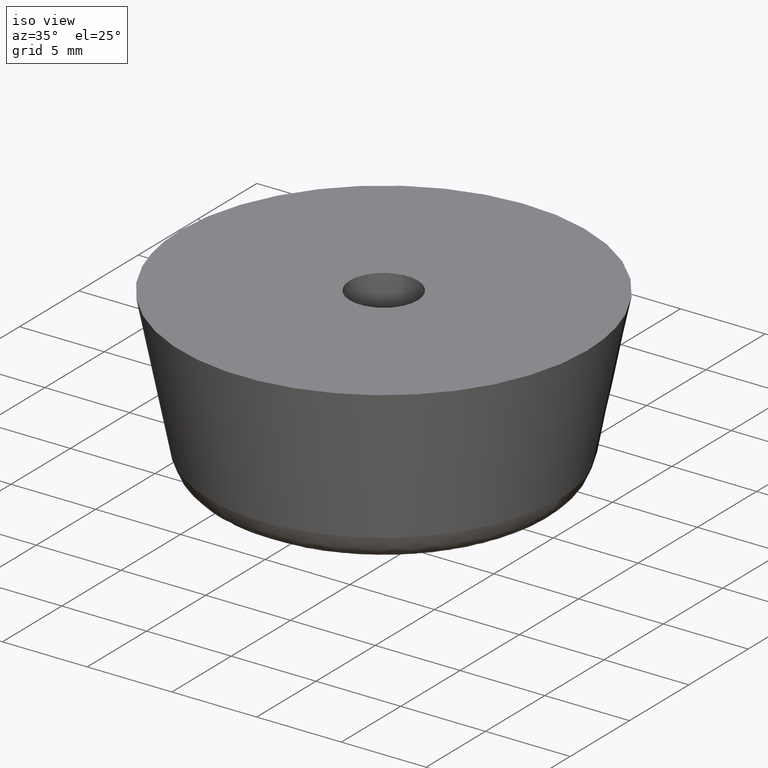
[diagram: clean part render]
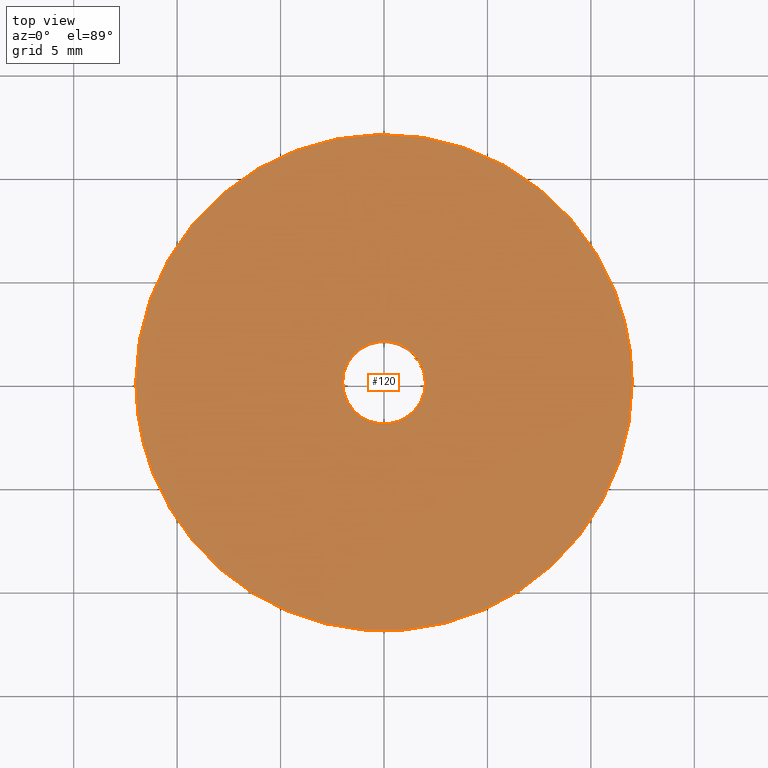
[diagram: tour spotlight — one face highlighted and labeled with its STEP entity id]
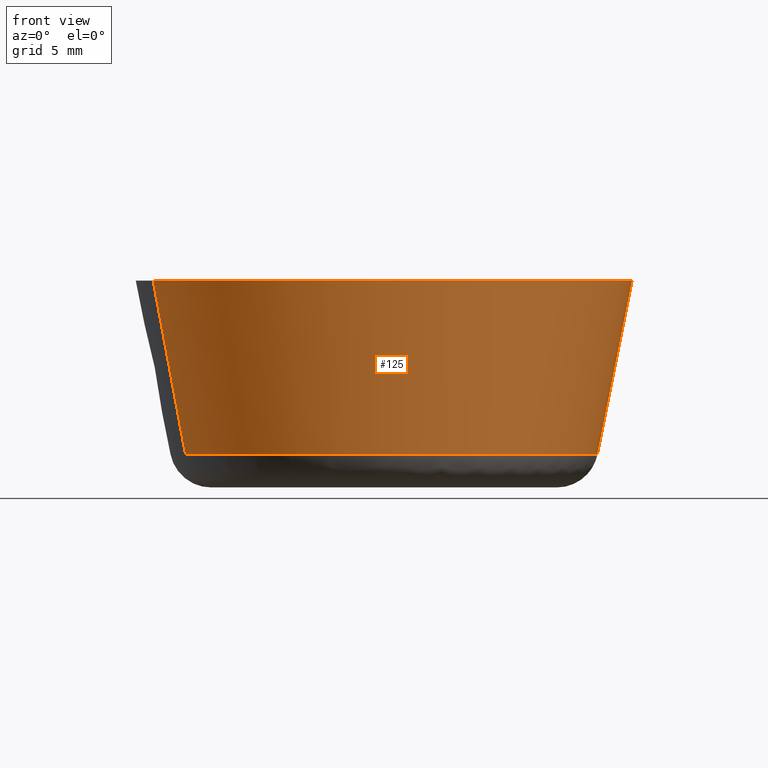
[diagram: tour spotlight — one face highlighted and labeled with its STEP entity id]
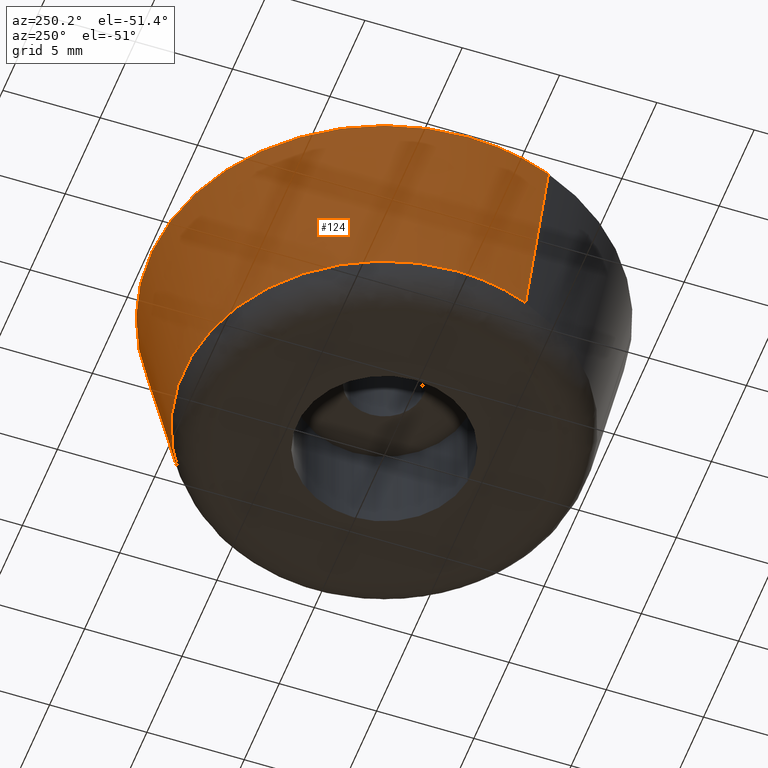
[diagram: tour spotlight — one face highlighted and labeled with its STEP entity id]
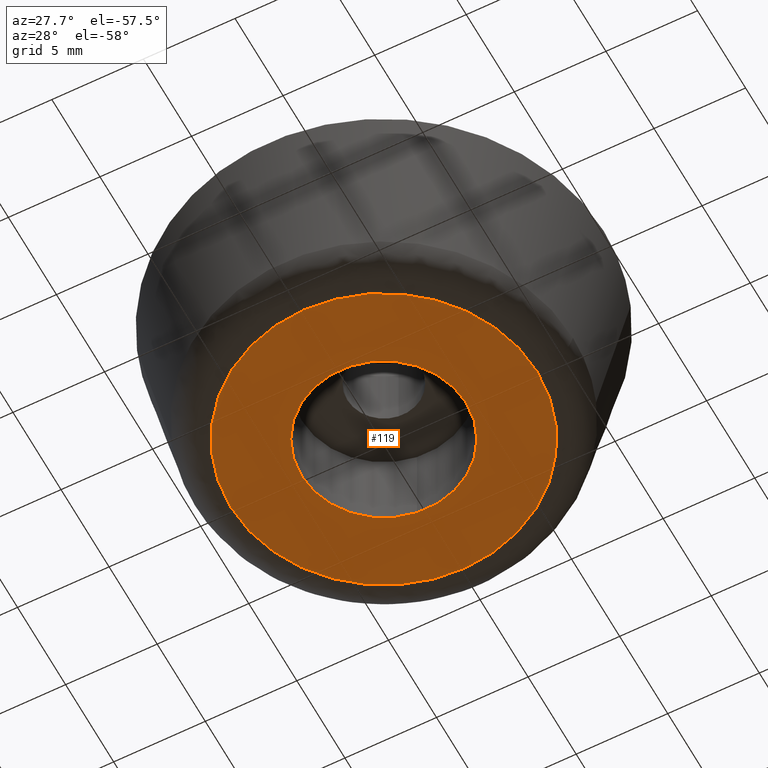
[diagram: tour spotlight — one face highlighted and labeled with its STEP entity id]
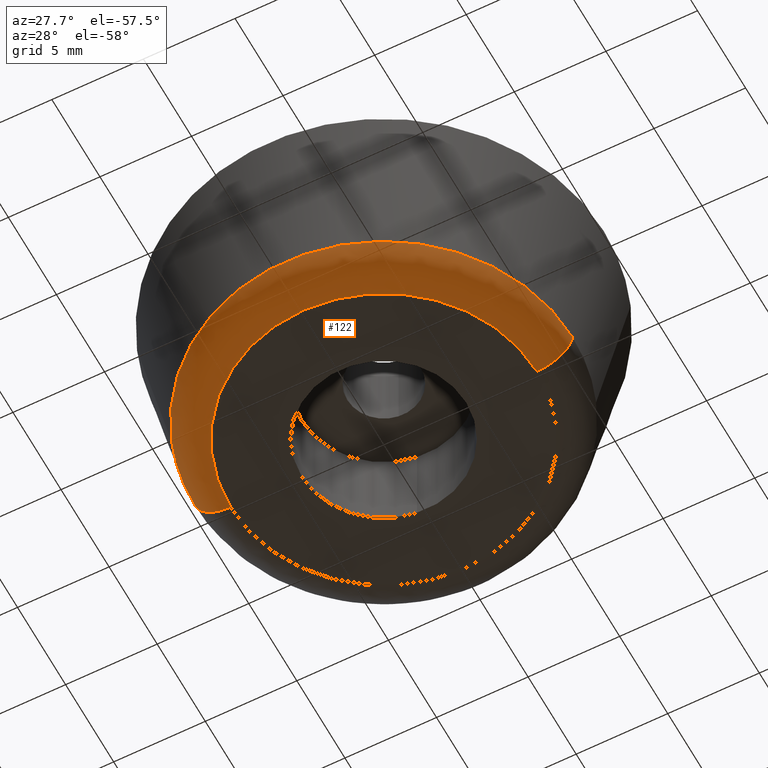
[diagram: tour spotlight — one face highlighted and labeled with its STEP entity id]
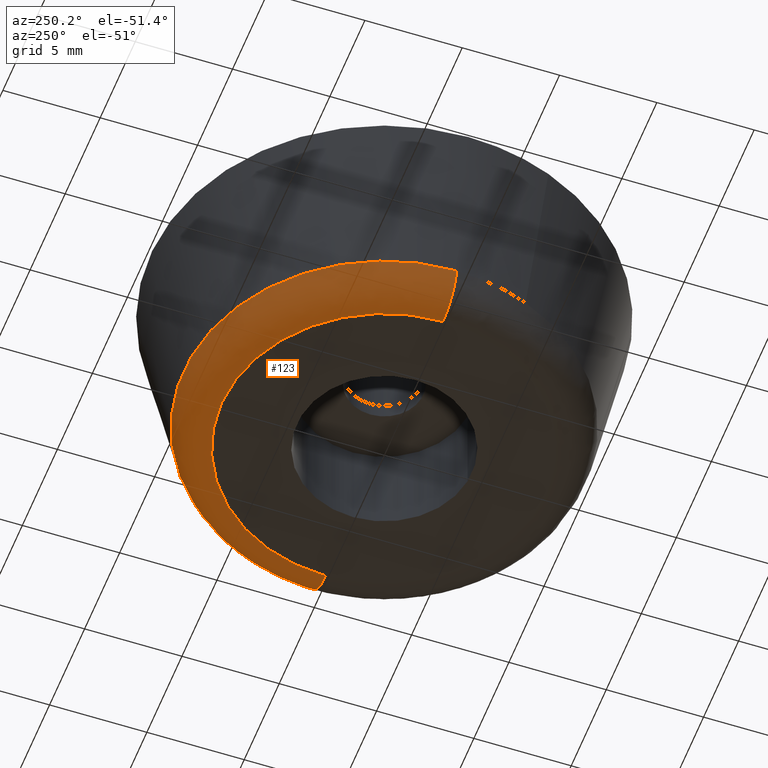
[diagram: tour spotlight — one face highlighted and labeled with its STEP entity id]
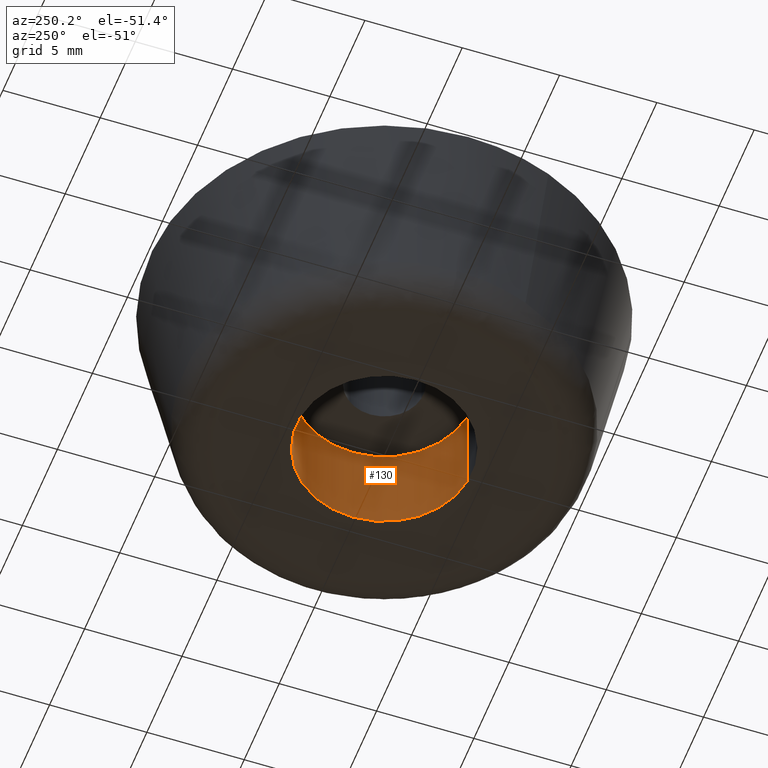
[diagram: tour spotlight — one face highlighted and labeled with its STEP entity id]
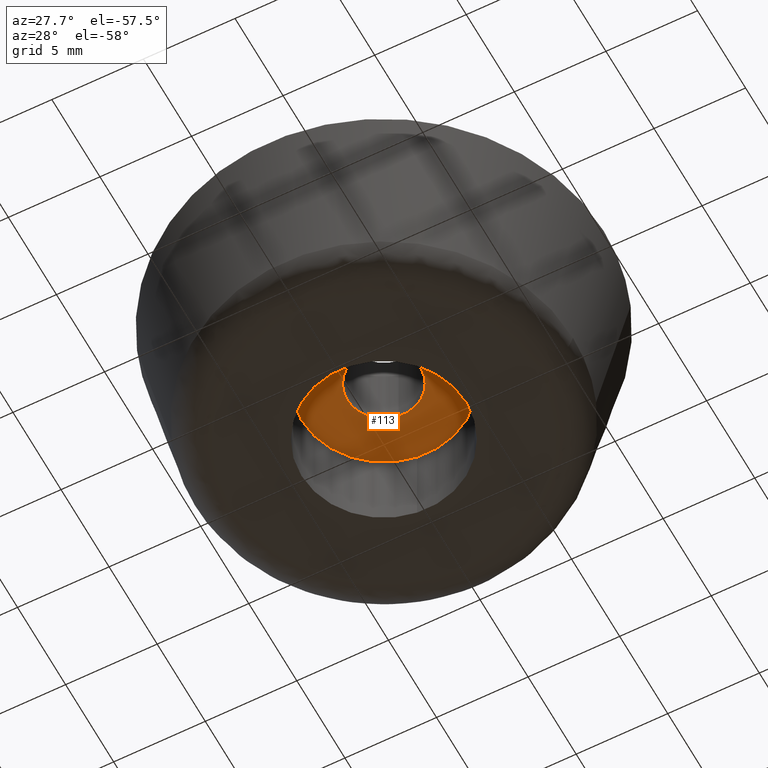
[diagram: tour spotlight — one face highlighted and labeled with its STEP entity id]
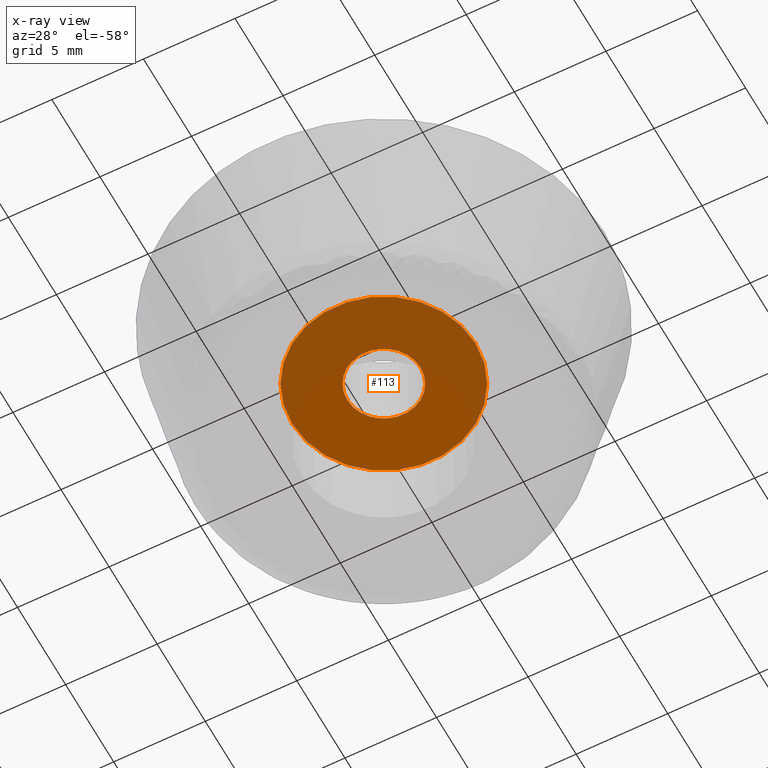
[diagram: x-ray of the same camera — body ghosted, this tour face saturated]
A machine part: a face-by-face anatomy tour. The part has 20 B-rep faces; the first image is the clean iso view, then the 8 largest visible faces are spotlighted one at a time (largest first), each with its STEP entity span.

Face 1 — top view, entity #120. In plain terms, the highlighted planar face has unit normal (0, 0, -1).
Definition (entity closure, byte-faithful):
#120=ADVANCED_FACE('',(#217,#218),#216,.F.);
#216=PLANE('',#385);
#217=FACE_OUTER_BOUND('',#386,.T.);
#218=FACE_BOUND('',#387,.T.);
#382=CARTESIAN_POINT('',(1.44000000000E+001,-1.51244447844E+001,1.00000000000E+001));
#383=DIRECTION('',(0.00000000000E+000,0.00000000000E+000,-1.00000000000E+000));
#384=DIRECTION('',(-1.00000000000E+000,0.00000000000E+000,0.00000000000E+000));
#385=AXIS2_PLACEMENT_3D('',#382,#383,#384);
#386=EDGE_LOOP('',(#541,#542,#543,#544,#545));
#387=EDGE_LOOP('',(#546,#547,#548));
#541=ORIENTED_EDGE('',*,*,#635,.F.);
#542=ORIENTED_EDGE('',*,*,#636,.F.);
#543=ORIENTED_EDGE('',*,*,#637,.F.);
#544=ORIENTED_EDGE('',*,*,#638,.F.);
#545=ORIENTED_EDGE('',*,*,#639,.F.);
#546=ORIENTED_EDGE('',*,*,#640,.T.);
#547=ORIENTED_EDGE('',*,*,#641,.T.);
#548=ORIENTED_EDGE('',*,*,#642,.T.);
#635=EDGE_CURVE('',#848,#849,#850,.T.);
#636=EDGE_CURVE('',#856,#848,#857,.T.);
#637=EDGE_CURVE('',#863,#856,#864,.T.);
#638=EDGE_CURVE('',#870,#863,#871,.T.);
#639=EDGE_CURVE('',#849,#870,#877,.T.);
#640=EDGE_CURVE('',#883,#884,#885,.T.);
#641=EDGE_CURVE('',#884,#891,#892,.T.);
#642=EDGE_CURVE('',#891,#883,#898,.T.);
#848=VERTEX_POINT('',#1157);
#849=VERTEX_POINT('',#1158);
#850=CIRCLE('',#1162,1.19999992086E+001);
#856=VERTEX_POINT('',#1163);
#857=CIRCLE('',#1167,1.19999986397E+001);
#863=VERTEX_POINT('',#1168);
#864=CIRCLE('',#1172,1.19999993741E+001);
#870=VERTEX_POINT('',#1173);
#871=CIRCLE('',#1177,1.20000000000E+001);
#877=CIRCLE('',#1181,1.20000000000E+001);
#883=VERTEX_POINT('',#1182);
#884=VERTEX_POINT('',#1183);
#885=CIRCLE('',#1187,2.00000000000E+000);
#891=VERTEX_POINT('',#1188);
#892=CIRCLE('',#1192,2.00000000000E+000);
#898=CIRCLE('',#1196,2.00000000000E+000);
#1157=CARTESIAN_POINT('',(-1.11583738648E+001,-4.41482432258E+000,9.99999606358E+000));
#1158=CARTESIAN_POINT('',(-1.20000000000E+001,0.00000000000E+000,1.00000000000E+001));
#1159=CARTESIAN_POINT('',(-7.91445470938E-007,1.98905207327E-006,9.99999803179E+000));
#1160=DIRECTION('',(-1.64017526573E-007,8.60369228197E-007,-1.00000000000E+000));
#1161=DIRECTION('',(9.29864484105E-001,3.67902216901E-001,1.64017673676E-007));
#1162=AXIS2_PLACEMENT_3D('',#1159,#1160,#1161);
#1163=CARTESIAN_POINT('',(9.41502212956E-001,-1.19630078286E+001,9.99999640080E+000));
#1164=CARTESIAN_POINT('',(-3.51152686484E-007,-6.70123860402E-007,9.99999623219E+000));
#1165=DIRECTION('',(2.00623568289E-008,-1.25153666998E-008,-1.00000000000E+000));
#1166=DIRECTION('',(-7.84585559033E-002,9.96917376218E-001,-1.40508500776E-008));
#1167=AXIS2_PLACEMENT_3D('',#1164,#1165,#1166);
#1168=CARTESIAN_POINT('',(1.20000000000E+001,0.00000000000E+000,1.00000000000E+001));
#1169=CARTESIAN_POINT('',(6.25933945564E-007,1.43460043844E-007,9.99999820040E+000));
#1170=DIRECTION('',(1.49966673738E-007,1.62232940337E-007,-1.00000000000E+000));
#1171=DIRECTION('',(-1.00000000000E+000,1.19550042773E-008,-1.49966671798E-007));
#1172=AXIS2_PLACEMENT_3D('',#1169,#1170,#1171);
#1173=CARTESIAN_POINT('',(1.11583728275E+001,4.41482908420E+000,1.00000000000E+001));
#1174=CARTESIAN_POINT('',(0.00000000000E+000,0.00000000000E+000,1.00000000000E+001));
#1175=DIRECTION('',(0.00000000000E+000,2.09345661158E-016,-1.00000000000E+000));
#1176=DIRECTION('',(1.00000000000E+000,-0.00000000000E+000,-0.00000000000E+000));
#1177=AXIS2_PLACEMENT_3D('',#1174,#1175,#1176);
#1178=CARTESIAN_POINT('',(0.00000000000E+000,0.00000000000E+000,1.00000000000E+001));
#1179=DIRECTION('',(0.00000000000E+000,2.09345661158E-016,-1.00000000000E+000));
#1180=DIRECTION('',(1.00000000000E+000,-0.00000000000E+000,-0.00000000000E+000));
#1181=AXIS2_PLACEMENT_3D('',#1178,#1179,#1180);
#1182=CARTESIAN_POINT('',(-2.00000000000E+000,-6.66133814775E-016,1.00000000000E+001));
#1183=CARTESIAN_POINT('',(-2.36411791321E-001,1.98597821361E+000,1.00000000000E+001));
#1184=CARTESIAN_POINT('',(-5.55111512313E-016,-3.33066907388E-016,1.00000000000E+001));
#1185=DIRECTION('',(1.01880182416E-014,-5.77861428570E-016,-1.00000000000E+000));
#1186=DIRECTION('',(-1.00000000000E+000,1.94289029309E-016,-1.01880182416E-014));
#1187=AXIS2_PLACEMENT_3D('',#1184,#1185,#1186);
#1188=CARTESIAN_POINT('',(2.36067743038E-001,-1.98601913906E+000,1.00000000000E+001));
#1189=CARTESIAN_POINT('',(-5.55111512313E-016,-3.33066907388E-016,1.00000000000E+001));
#1190=DIRECTION('',(1.01880182416E-014,-5.77861428570E-016,-1.00000000000E+000));
#1191=DIRECTION('',(-1.00000000000E+000,1.94289029309E-016,-1.01880182416E-014));
#1192=AXIS2_PLACEMENT_3D('',#1189,#1190,#1191);
#1193=CARTESIAN_POINT('',(-5.55111512313E-016,-3.33066907388E-016,1.00000000000E+001));
#1194=DIRECTION('',(1.01880182416E-014,-5.77861428570E-016,-1.00000000000E+000));
#1195=DIRECTION('',(-1.00000000000E+000,1.94289029309E-016,-1.01880182416E-014));
#1196=AXIS2_PLACEMENT_3D('',#1193,#1194,#1195);

Face 2 — front view, entity #125. In plain terms, the highlighted face is a freeform B-spline surface patch.
Definition (entity closure, byte-faithful):
#125=ADVANCED_FACE('',(#269),#268,.T.);
#268=( BOUNDED_SURFACE() B_SPLINE_SURFACE( 2,1,((#457,#458),(#459,#460),(#461,#462),(#463,#464),(#465,#466)), .UNSPECIFIED.,.F.,.F.,.F.) B_SPLINE_SURFACE_WITH_KNOTS((3,2,3),(2,2),(0.00000000000E+000,5.00000000000E-001,1.00000000000E+000),(0.00000000000E+000,1.00000000000E+000), .UNSPECIFIED. ) GEOMETRIC_REPRESENTATION_ITEM() RATIONAL_B_SPLINE_SURFACE(((1.00000000000E+000,1.00000000000E+000),(7.07106781187E-001,7.07106781187E-001),(1.00000000000E+000,1.00000000000E+000),(7.07106781187E-001,7.07106781187E-001),(1.00000000000E+000,1.00000000000E+000))) REPRESENTATION_ITEM('') SURFACE() );
#269=FACE_OUTER_BOUND('',#467,.T.);
#457=CARTESIAN_POINT('',(-9.59764558634E+000,-3.79732418365E+000,1.60776777301E+000));
#458=CARTESIAN_POINT('',(-1.11585032174E+001,-4.41488005985E+000,1.00006999949E+001));
#459=CARTESIAN_POINT('',(-5.80032140269E+000,-1.33949697700E+001,1.60776777301E+000));
#460=CARTESIAN_POINT('',(-6.74362315751E+000,-1.55733832772E+001,1.00006999949E+001));
#461=CARTESIAN_POINT('',(3.79732418365E+000,-9.59764558634E+000,1.60776777301E+000));
#462=CARTESIAN_POINT('',(4.41488005985E+000,-1.11585032174E+001,1.00006999949E+001));
#463=CARTESIAN_POINT('',(1.33949697700E+001,-5.80032140269E+000,1.60776777301E+000));
#464=CARTESIAN_POINT('',(1.55733832772E+001,-6.74362315751E+000,1.00006999949E+001));
#465=CARTESIAN_POINT('',(9.59764558634E+000,3.79732418365E+000,1.60776777301E+000));
#466=CARTESIAN_POINT('',(1.11585032174E+001,4.41488005985E+000,1.00006999949E+001));
#467=EDGE_LOOP('',(#571,#572,#573,#574,#575,#576,#577));
#571=ORIENTED_EDGE('',*,*,#649,.T.);
#572=ORIENTED_EDGE('',*,*,#654,.T.);
#573=ORIENTED_EDGE('',*,*,#655,.T.);
#574=ORIENTED_EDGE('',*,*,#638,.T.);
#575=ORIENTED_EDGE('',*,*,#637,.T.);
#576=ORIENTED_EDGE('',*,*,#636,.T.);
#577=ORIENTED_EDGE('',*,*,#656,.F.);
#636=EDGE_CURVE('',#856,#848,#857,.T.);
#637=EDGE_CURVE('',#863,#856,#864,.T.);
#638=EDGE_CURVE('',#870,#863,#871,.T.);
#649=EDGE_CURVE('',#946,#947,#948,.T.);
#654=EDGE_CURVE('',#947,#973,#980,.T.);
#655=EDGE_CURVE('',#973,#870,#986,.T.);
#656=EDGE_CURVE('',#946,#848,#992,.T.);
#848=VERTEX_POINT('',#1157);
#856=VERTEX_POINT('',#1163);
#857=CIRCLE('',#1167,1.19999986397E+001);
#863=VERTEX_POINT('',#1168);
#864=CIRCLE('',#1172,1.19999993741E+001);
#870=VERTEX_POINT('',#1173);
#871=CIRCLE('',#1177,1.20000000000E+001);
#946=VERTEX_POINT('',#1227);
#947=VERTEX_POINT('',#1228);
#948=CIRCLE('',#1232,1.03215537472E+001);
#973=VERTEX_POINT('',#1246);
#980=CIRCLE('',#1254,1.03215537472E+001);
#986=(BOUNDED_CURVE() B_SPLINE_CURVE(1,(#1255,#1256),.UNSPECIFIED.,.F.,.F.) B_SPLINE_CURVE_WITH_KNOTS((2,2),(0.00000000000E+000,9.99916594475E-001),.UNSPECIFIED.) CURVE() GEOMETRIC_REPRESENTATION_ITEM() RATIONAL_B_SPLINE_CURVE((1.00000000000E+000,1.00000000000E+000)) REPRESENTATION_ITEM('') );
#992=(BOUNDED_CURVE() B_SPLINE_CURVE(1,(#1257,#1258),.UNSPECIFIED.,.F.,.F.) B_SPLINE_CURVE_WITH_KNOTS((2,2),(0.00000000000E+000,1.00000000000E+000),.UNSPECIFIED.) CURVE() GEOMETRIC_REPRESENTATION_ITEM() RATIONAL_B_SPLINE_CURVE((7.50000000000E-001,7.50000000000E-001)) REPRESENTATION_ITEM('') );
#1157=CARTESIAN_POINT('',(-1.11583738648E+001,-4.41482432258E+000,9.99999606358E+000));
#1163=CARTESIAN_POINT('',(9.41502212956E-001,-1.19630078286E+001,9.99999640080E+000));
#1164=CARTESIAN_POINT('',(-3.51152686484E-007,-6.70123860402E-007,9.99999623219E+000));
#1165=DIRECTION('',(2.00623568289E-008,-1.25153666998E-008,-1.00000000000E+000));
#1166=DIRECTION('',(-7.84585559033E-002,9.96917376218E-001,-1.40508500776E-008));
#1167=AXIS2_PLACEMENT_3D('',#1164,#1165,#1166);
#1168=CARTESIAN_POINT('',(1.20000000000E+001,0.00000000000E+000,1.00000000000E+001));
#1169=CARTESIAN_POINT('',(6.25933945564E-007,1.43460043844E-007,9.99999820040E+000));
#1170=DIRECTION('',(1.49966673738E-007,1.62232940337E-007,-1.00000000000E+000));
#1171=DIRECTION('',(-1.00000000000E+000,1.19550042773E-008,-1.49966671798E-007));
#1172=AXIS2_PLACEMENT_3D('',#1169,#1170,#1171);
#1173=CARTESIAN_POINT('',(1.11583728275E+001,4.41482908420E+000,1.00000000000E+001));
#1174=CARTESIAN_POINT('',(0.00000000000E+000,0.00000000000E+000,1.00000000000E+001));
#1175=DIRECTION('',(0.00000000000E+000,2.09345661158E-016,-1.00000000000E+000));
#1176=DIRECTION('',(1.00000000000E+000,-0.00000000000E+000,-0.00000000000E+000));
#1177=AXIS2_PLACEMENT_3D('',#1174,#1175,#1176);
#1227=CARTESIAN_POINT('',(-9.59703680959E+000,-3.79886249188E+000,1.60776777301E+000));
#1228=CARTESIAN_POINT('',(1.03215537472E+001,9.48800476251E-017,1.60776777301E+000));
#1229=CARTESIAN_POINT('',(1.01138251249E-014,9.48800476251E-017,1.60776777301E+000));
#1230=DIRECTION('',(-5.93672879096E-016,-2.34887646214E-016,1.00000000000E+000));
#1231=DIRECTION('',(1.00000000000E+000,-1.22460635382E-016,5.93672879096E-016));
#1232=AXIS2_PLACEMENT_3D('',#1229,#1230,#1231);
#1246=CARTESIAN_POINT('',(9.59764434140E+000,3.79732733022E+000,1.60776777301E+000));
#1251=CARTESIAN_POINT('',(1.01138251249E-014,9.48800476251E-017,1.60776777301E+000));
#1252=DIRECTION('',(-5.93672879096E-016,-2.34887646214E-016,1.00000000000E+000));
#1253=DIRECTION('',(1.00000000000E+000,-1.22460635382E-016,5.93672879096E-016));
#1254=AXIS2_PLACEMENT_3D('',#1251,#1252,#1253);
#1255=CARTESIAN_POINT('',(9.59764558634E+000,3.79732418365E+000,1.60776777301E+000));
#1256=CARTESIAN_POINT('',(1.11583730332E+001,4.41482855228E+000,9.99999997796E+000));
#1257=CARTESIAN_POINT('',(-9.59764558634E+000,-3.79732418365E+000,1.60776777301E+000));
#1258=CARTESIAN_POINT('',(-1.11585032174E+001,-4.41488005985E+000,1.00006999949E+001));

Face 3 — auxiliary view, entity #124. In plain terms, the highlighted face is a freeform B-spline surface patch.
Definition (entity closure, byte-faithful):
#124=ADVANCED_FACE('',(#259),#258,.T.);
#258=( BOUNDED_SURFACE() B_SPLINE_SURFACE( 2,1,((#446,#447),(#448,#449),(#450,#451),(#452,#453),(#454,#455)), .UNSPECIFIED.,.F.,.F.,.F.) B_SPLINE_SURFACE_WITH_KNOTS((3,2,3),(2,2),(0.00000000000E+000,5.00000000000E-001,1.00000000000E+000),(0.00000000000E+000,1.00000000000E+000), .UNSPECIFIED. ) GEOMETRIC_REPRESENTATION_ITEM() RATIONAL_B_SPLINE_SURFACE(((1.00000000000E+000,1.00000000000E+000),(7.07106781187E-001,7.07106781187E-001),(1.00000000000E+000,1.00000000000E+000),(7.07106781187E-001,7.07106781187E-001),(1.00000000000E+000,1.00000000000E+000))) REPRESENTATION_ITEM('') SURFACE() );
#259=FACE_OUTER_BOUND('',#456,.T.);
#446=CARTESIAN_POINT('',(9.59764558634E+000,3.79732418365E+000,1.60776777301E+000));
#447=CARTESIAN_POINT('',(1.11585032174E+001,4.41488005985E+000,1.00006999949E+001));
#448=CARTESIAN_POINT('',(5.80032140269E+000,1.33949697700E+001,1.60776777301E+000));
#449=CARTESIAN_POINT('',(6.74362315751E+000,1.55733832772E+001,1.00006999949E+001));
#450=CARTESIAN_POINT('',(-3.79732418365E+000,9.59764558634E+000,1.60776777301E+000));
#451=CARTESIAN_POINT('',(-4.41488005985E+000,1.11585032174E+001,1.00006999949E+001));
#452=CARTESIAN_POINT('',(-1.33949697700E+001,5.80032140269E+000,1.60776777301E+000));
#453=CARTESIAN_POINT('',(-1.55733832772E+001,6.74362315751E+000,1.00006999949E+001));
#454=CARTESIAN_POINT('',(-9.59764558634E+000,-3.79732418365E+000,1.60776777301E+000));
#455=CARTESIAN_POINT('',(-1.11585032174E+001,-4.41488005985E+000,1.00006999949E+001));
#456=EDGE_LOOP('',(#565,#566,#567,#568,#569,#570));
#565=ORIENTED_EDGE('',*,*,#635,.T.);
#566=ORIENTED_EDGE('',*,*,#639,.T.);
#567=ORIENTED_EDGE('',*,*,#655,.F.);
#568=ORIENTED_EDGE('',*,*,#653,.T.);
#569=ORIENTED_EDGE('',*,*,#650,.T.);
#570=ORIENTED_EDGE('',*,*,#656,.T.);
#635=EDGE_CURVE('',#848,#849,#850,.T.);
#639=EDGE_CURVE('',#849,#870,#877,.T.);
#650=EDGE_CURVE('',#954,#946,#955,.T.);
#653=EDGE_CURVE('',#973,#954,#974,.T.);
#655=EDGE_CURVE('',#973,#870,#986,.T.);
#656=EDGE_CURVE('',#946,#848,#992,.T.);
#848=VERTEX_POINT('',#1157);
#849=VERTEX_POINT('',#1158);
#850=CIRCLE('',#1162,1.19999992086E+001);
#870=VERTEX_POINT('',#1173);
#877=CIRCLE('',#1181,1.20000000000E+001);
#946=VERTEX_POINT('',#1227);
#954=VERTEX_POINT('',#1233);
#955=CIRCLE('',#1237,1.03215537472E+001);
#973=VERTEX_POINT('',#1246);
#974=CIRCLE('',#1250,1.03215537472E+001);
#986=(BOUNDED_CURVE() B_SPLINE_CURVE(1,(#1255,#1256),.UNSPECIFIED.,.F.,.F.) B_SPLINE_CURVE_WITH_KNOTS((2,2),(0.00000000000E+000,9.99916594475E-001),.UNSPECIFIED.) CURVE() GEOMETRIC_REPRESENTATION_ITEM() RATIONAL_B_SPLINE_CURVE((1.00000000000E+000,1.00000000000E+000)) REPRESENTATION_ITEM('') );
#992=(BOUNDED_CURVE() B_SPLINE_CURVE(1,(#1257,#1258),.UNSPECIFIED.,.F.,.F.) B_SPLINE_CURVE_WITH_KNOTS((2,2),(0.00000000000E+000,1.00000000000E+000),.UNSPECIFIED.) CURVE() GEOMETRIC_REPRESENTATION_ITEM() RATIONAL_B_SPLINE_CURVE((7.50000000000E-001,7.50000000000E-001)) REPRESENTATION_ITEM('') );
#1157=CARTESIAN_POINT('',(-1.11583738648E+001,-4.41482432258E+000,9.99999606358E+000));
#1158=CARTESIAN_POINT('',(-1.20000000000E+001,0.00000000000E+000,1.00000000000E+001));
#1159=CARTESIAN_POINT('',(-7.91445470938E-007,1.98905207327E-006,9.99999803179E+000));
#1160=DIRECTION('',(-1.64017526573E-007,8.60369228197E-007,-1.00000000000E+000));
#1161=DIRECTION('',(9.29864484105E-001,3.67902216901E-001,1.64017673676E-007));
#1162=AXIS2_PLACEMENT_3D('',#1159,#1160,#1161);
#1173=CARTESIAN_POINT('',(1.11583728275E+001,4.41482908420E+000,1.00000000000E+001));
#1178=CARTESIAN_POINT('',(0.00000000000E+000,0.00000000000E+000,1.00000000000E+001));
#1179=DIRECTION('',(0.00000000000E+000,2.09345661158E-016,-1.00000000000E+000));
#1180=DIRECTION('',(1.00000000000E+000,-0.00000000000E+000,-0.00000000000E+000));
#1181=AXIS2_PLACEMENT_3D('',#1178,#1179,#1180);
#1227=CARTESIAN_POINT('',(-9.59703680959E+000,-3.79886249188E+000,1.60776777301E+000));
#1233=CARTESIAN_POINT('',(-1.03215537472E+001,5.92118946467E-016,1.60776777301E+000));
#1234=CARTESIAN_POINT('',(1.01138251249E-014,9.48800476251E-017,1.60776777301E+000));
#1235=DIRECTION('',(-5.93672879096E-016,-2.34887646214E-016,1.00000000000E+000));
#1236=DIRECTION('',(1.00000000000E+000,-1.22460635382E-016,5.93672879096E-016));
#1237=AXIS2_PLACEMENT_3D('',#1234,#1235,#1236);
#1246=CARTESIAN_POINT('',(9.59764434140E+000,3.79732733022E+000,1.60776777301E+000));
#1247=CARTESIAN_POINT('',(1.01138251249E-014,9.48800476251E-017,1.60776777301E+000));
#1248=DIRECTION('',(-5.93672879096E-016,-2.34887646214E-016,1.00000000000E+000));
#1249=DIRECTION('',(1.00000000000E+000,-1.22460635382E-016,5.93672879096E-016));
#1250=AXIS2_PLACEMENT_3D('',#1247,#1248,#1249);
#1255=CARTESIAN_POINT('',(9.59764558634E+000,3.79732418365E+000,1.60776777301E+000));
#1256=CARTESIAN_POINT('',(1.11583730332E+001,4.41482855228E+000,9.99999997796E+000));
#1257=CARTESIAN_POINT('',(-9.59764558634E+000,-3.79732418365E+000,1.60776777301E+000));
#1258=CARTESIAN_POINT('',(-1.11585032174E+001,-4.41488005985E+000,1.00006999949E+001));

Face 4 — auxiliary view, entity #119. In plain terms, the highlighted planar face has unit normal (0, 0, 1).
Definition (entity closure, byte-faithful):
#119=ADVANCED_FACE('',(#206,#207),#205,.F.);
#205=PLANE('',#379);
#206=FACE_OUTER_BOUND('',#380,.T.);
#207=FACE_BOUND('',#381,.T.);
#376=CARTESIAN_POINT('',(-1.92289024905E+001,-1.73767492630E+001,4.21884700000E-015));
#377=DIRECTION('',(0.00000000000E+000,-0.00000000000E+000,1.00000000000E+000));
#378=DIRECTION('',(1.00000000000E+000,0.00000000000E+000,0.00000000000E+000));
#379=AXIS2_PLACEMENT_3D('',#376,#377,#378);
#380=EDGE_LOOP('',(#536,#537));
#381=EDGE_LOOP('',(#538,#539,#540));
#536=ORIENTED_EDGE('',*,*,#630,.T.);
#537=ORIENTED_EDGE('',*,*,#631,.T.);
#538=ORIENTED_EDGE('',*,*,#632,.F.);
#539=ORIENTED_EDGE('',*,*,#633,.F.);
#540=ORIENTED_EDGE('',*,*,#634,.F.);
#630=EDGE_CURVE('',#813,#814,#815,.T.);
#631=EDGE_CURVE('',#814,#813,#821,.T.);
#632=EDGE_CURVE('',#827,#828,#829,.T.);
#633=EDGE_CURVE('',#835,#827,#836,.T.);
#634=EDGE_CURVE('',#828,#835,#842,.T.);
#813=VERTEX_POINT('',#1132);
#814=VERTEX_POINT('',#1133);
#815=CIRCLE('',#1137,8.36039238718E+000);
#821=CIRCLE('',#1141,8.36039238718E+000);
#827=VERTEX_POINT('',#1142);
#828=VERTEX_POINT('',#1143);
#829=CIRCLE('',#1147,4.50000000000E+000);
#835=VERTEX_POINT('',#1148);
#836=CIRCLE('',#1152,4.50000000000E+000);
#842=CIRCLE('',#1156,4.50000000000E+000);
#1132=CARTESIAN_POINT('',(8.36039238718E+000,9.48800476251E-017,4.33680868994E-015));
#1133=CARTESIAN_POINT('',(-8.36039238718E+000,1.77635683940E-015,4.33680868994E-015));
#1134=CARTESIAN_POINT('',(1.01138251249E-014,9.48800476251E-017,4.33680868994E-015));
#1135=DIRECTION('',(0.00000000000E+000,0.00000000000E+000,-1.00000000000E+000));
#1136=DIRECTION('',(1.00000000000E+000,-1.22460635382E-016,-0.00000000000E+000));
#1137=AXIS2_PLACEMENT_3D('',#1134,#1135,#1136);
#1138=CARTESIAN_POINT('',(1.01138251249E-014,9.48800476251E-017,4.33680868994E-015));
#1139=DIRECTION('',(0.00000000000E+000,0.00000000000E+000,-1.00000000000E+000));
#1140=DIRECTION('',(1.00000000000E+000,-1.22460635382E-016,-0.00000000000E+000));
#1141=AXIS2_PLACEMENT_3D('',#1138,#1139,#1140);
#1142=CARTESIAN_POINT('',(5.31152421835E-001,-4.46854306287E+000,3.16386470465E-014));
#1143=CARTESIAN_POINT('',(-4.50000000000E+000,-2.22044604925E-016,2.88097717397E-013));
#1144=CARTESIAN_POINT('',(1.24344978758E-012,5.63993296510E-013,2.37307106866E-014));
#1145=DIRECTION('',(-5.87482237134E-014,-8.75278521733E-015,-1.00000000000E+000));
#1146=DIRECTION('',(-1.00000000000E+000,-1.24997234785E-013,5.87482237134E-014));
#1147=AXIS2_PLACEMENT_3D('',#1144,#1145,#1146);
#1148=CARTESIAN_POINT('',(-5.31926375409E-001,4.46845099908E+000,1.58690485392E-014));
#1149=CARTESIAN_POINT('',(1.24344978758E-012,5.63993296510E-013,2.37307106866E-014));
#1150=DIRECTION('',(-5.87482237134E-014,-8.75278521733E-015,-1.00000000000E+000));
#1151=DIRECTION('',(-1.00000000000E+000,-1.24997234785E-013,5.87482237134E-014));
#1152=AXIS2_PLACEMENT_3D('',#1149,#1150,#1151);
#1153=CARTESIAN_POINT('',(1.24344978758E-012,5.63993296510E-013,2.37307106866E-014));
#1154=DIRECTION('',(-5.87482237134E-014,-8.75278521733E-015,-1.00000000000E+000));
#1155=DIRECTION('',(-1.00000000000E+000,-1.24997234785E-013,5.87482237134E-014));
#1156=AXIS2_PLACEMENT_3D('',#1153,#1154,#1155);

Face 5 — auxiliary view, entity #122. In plain terms, the highlighted face is a freeform B-spline surface patch.
Definition (entity closure, byte-faithful):
#122=ADVANCED_FACE('',(#239),#238,.T.);
#238=( BOUNDED_SURFACE() B_SPLINE_SURFACE( 2,2,((#394,#395,#396,#397,#398),(#399,#400,#401,#402,#403),(#404,#405,#406,#407,#408),(#409,#410,#411,#412,#413),(#414,#415,#416,#417,#418)), .UNSPECIFIED.,.F.,.F.,.F.) B_SPLINE_SURFACE_WITH_KNOTS((3,2,3),(3,2,3),(0.00000000000E+000,5.00000000000E-001,1.00000000000E+000),(0.00000000000E+000,5.00000000000E-001,1.00000000000E+000), .UNSPECIFIED. ) GEOMETRIC_REPRESENTATION_ITEM() RATIONAL_B_SPLINE_SURFACE(((1.00000000000E+000,7.73342134342E-001,1.00000000000E+000,7.73342134342E-001,1.00000000000E+000),(7.07106781187E-001,5.46835467371E-001,7.07106781187E-001,5.46835467371E-001,7.07106781187E-001),(1.00000000000E+000,7.73342134342E-001,1.00000000000E+000,7.73342134342E-001,1.00000000000E+000),(7.07106781187E-001,5.46835467371E-001,7.07106781187E-001,5.46835467371E-001,7.07106781187E-001),(1.00000000000E+000,7.73342134342E-001,1.00000000000E+000,7.73342134342E-001,1.00000000000E+000))) REPRESENTATION_ITEM('') SURFACE() );
#239=FACE_OUTER_BOUND('',#419,.T.);
#394=CARTESIAN_POINT('',(-6.39923102714E+000,-6.88773849917E-016,1.60776777301E+000));
#395=CARTESIAN_POINT('',(-6.72078454484E+000,-7.28151498004E-016,4.88109740320E-015));
#396=CARTESIAN_POINT('',(-8.36039238718E+000,-9.28938916154E-016,4.66293670343E-015));
#397=CARTESIAN_POINT('',(-1.00000002295E+001,-1.12972633430E-015,4.59397402655E-015));
#398=CARTESIAN_POINT('',(-1.03215537472E+001,-1.16910398239E-015,1.60776777301E+000));
#399=CARTESIAN_POINT('',(-6.39923102714E+000,-6.39923102714E+000,1.60776777301E+000));
#400=CARTESIAN_POINT('',(-6.72078454484E+000,-6.72078454484E+000,4.88109740320E-015));
#401=CARTESIAN_POINT('',(-8.36039238718E+000,-8.36039238718E+000,4.66293670343E-015));
#402=CARTESIAN_POINT('',(-1.00000002295E+001,-1.00000002295E+001,4.59397402655E-015));
#403=CARTESIAN_POINT('',(-1.03215537472E+001,-1.03215537472E+001,1.60776777301E+000));
#404=CARTESIAN_POINT('',(1.05056391328E-014,-6.39923102714E+000,1.60776777301E+000));
#405=CARTESIAN_POINT('',(1.05253273065E-014,-6.72078454484E+000,4.88109740320E-015));
#406=CARTESIAN_POINT('',(1.06257176999E-014,-8.36039238718E+000,4.66293670343E-015));
#407=CARTESIAN_POINT('',(1.07261080932E-014,-1.00000002295E+001,4.59397402655E-015));
#408=CARTESIAN_POINT('',(1.07457962670E-014,-1.03215537472E+001,1.60776777301E+000));
#409=CARTESIAN_POINT('',(6.39923102714E+000,-6.39923102714E+000,1.60776777301E+000));
#410=CARTESIAN_POINT('',(6.72078454484E+000,-6.72078454484E+000,4.88109740320E-015));
#411=CARTESIAN_POINT('',(8.36039238718E+000,-8.36039238718E+000,4.66293670343E-015));
#412=CARTESIAN_POINT('',(1.00000002295E+001,-1.00000002295E+001,4.59397402655E-015));
#413=CARTESIAN_POINT('',(1.03215537472E+001,-1.03215537472E+001,1.60776777301E+000));
#414=CARTESIAN_POINT('',(6.39923102714E+000,9.48541657273E-017,1.60776777301E+000));
#415=CARTESIAN_POINT('',(6.72078454484E+000,9.48528651936E-017,4.88109740320E-015));
#416=CARTESIAN_POINT('',(8.36039238718E+000,9.48462337464E-017,4.66293670343E-015));
#417=CARTESIAN_POINT('',(1.00000002295E+001,9.48396022992E-017,4.59397402655E-015));
#418=CARTESIAN_POINT('',(1.03215537472E+001,9.48383017656E-017,1.60776777301E+000));
#419=EDGE_LOOP('',(#555,#556,#557,#558,#559));
#555=ORIENTED_EDGE('',*,*,#649,.F.);
#556=ORIENTED_EDGE('',*,*,#650,.F.);
#557=ORIENTED_EDGE('',*,*,#651,.F.);
#558=ORIENTED_EDGE('',*,*,#630,.F.);
#559=ORIENTED_EDGE('',*,*,#652,.T.);
#630=EDGE_CURVE('',#813,#814,#815,.T.);
#649=EDGE_CURVE('',#946,#947,#948,.T.);
#650=EDGE_CURVE('',#954,#946,#955,.T.);
#651=EDGE_CURVE('',#814,#954,#961,.T.);
#652=EDGE_CURVE('',#813,#947,#967,.T.);
#813=VERTEX_POINT('',#1132);
#814=VERTEX_POINT('',#1133);
#815=CIRCLE('',#1137,8.36039238718E+000);
#946=VERTEX_POINT('',#1227);
#947=VERTEX_POINT('',#1228);
#948=CIRCLE('',#1232,1.03215537472E+001);
#954=VERTEX_POINT('',#1233);
#955=CIRCLE('',#1237,1.03215537472E+001);
#961=(BOUNDED_CURVE() B_SPLINE_CURVE(2,(#1238,#1239,#1240),.UNSPECIFIED.,.F.,.F.) B_SPLINE_CURVE_WITH_KNOTS((3,3),(5.00000000000E-001,1.00000000000E+000),.UNSPECIFIED.) CURVE() GEOMETRIC_REPRESENTATION_ITEM() RATIONAL_B_SPLINE_CURVE((1.00000000000E+000,7.73342134342E-001,1.00000000000E+000)) REPRESENTATION_ITEM('') );
#967=(BOUNDED_CURVE() B_SPLINE_CURVE(3,(#1241,#1242,#1243,#1244,#1245),.UNSPECIFIED.,.F.,.F.) B_SPLINE_CURVE_WITH_KNOTS((4,1,4),(4.99999961882E-001,7.49999978723E-001,1.00000000000E+000),.UNSPECIFIED.) CURVE() GEOMETRIC_REPRESENTATION_ITEM() RATIONAL_B_SPLINE_CURVE((1.00000000000E+000,1.00000000000E+000,1.00000000000E+000,1.00000000000E+000,1.00000000000E+000)) REPRESENTATION_ITEM('') );
#1132=CARTESIAN_POINT('',(8.36039238718E+000,9.48800476251E-017,4.33680868994E-015));
#1133=CARTESIAN_POINT('',(-8.36039238718E+000,1.77635683940E-015,4.33680868994E-015));
#1134=CARTESIAN_POINT('',(1.01138251249E-014,9.48800476251E-017,4.33680868994E-015));
#1135=DIRECTION('',(0.00000000000E+000,0.00000000000E+000,-1.00000000000E+000));
#1136=DIRECTION('',(1.00000000000E+000,-1.22460635382E-016,-0.00000000000E+000));
#1137=AXIS2_PLACEMENT_3D('',#1134,#1135,#1136);
#1227=CARTESIAN_POINT('',(-9.59703680959E+000,-3.79886249188E+000,1.60776777301E+000));
#1228=CARTESIAN_POINT('',(1.03215537472E+001,9.48800476251E-017,1.60776777301E+000));
#1229=CARTESIAN_POINT('',(1.01138251249E-014,9.48800476251E-017,1.60776777301E+000));
#1230=DIRECTION('',(-5.93672879096E-016,-2.34887646214E-016,1.00000000000E+000));
#1231=DIRECTION('',(1.00000000000E+000,-1.22460635382E-016,5.93672879096E-016));
#1232=AXIS2_PLACEMENT_3D('',#1229,#1230,#1231);
#1233=CARTESIAN_POINT('',(-1.03215537472E+001,5.92118946467E-016,1.60776777301E+000));
#1234=CARTESIAN_POINT('',(1.01138251249E-014,9.48800476251E-017,1.60776777301E+000));
#1235=DIRECTION('',(-5.93672879096E-016,-2.34887646214E-016,1.00000000000E+000));
#1236=DIRECTION('',(1.00000000000E+000,-1.22460635382E-016,5.93672879096E-016));
#1237=AXIS2_PLACEMENT_3D('',#1234,#1235,#1236);
#1238=CARTESIAN_POINT('',(-8.36039238718E+000,-9.28938916154E-016,4.66293670343E-015));
#1239=CARTESIAN_POINT('',(-1.00000002295E+001,-1.12972633430E-015,4.59397402655E-015));
#1240=CARTESIAN_POINT('',(-1.03215537472E+001,-1.16910398239E-015,1.60776777301E+000));
#1241=CARTESIAN_POINT('',(8.36039219385E+000,1.48029728190E-015,1.40072381785E-014));
#1242=CARTESIAN_POINT('',(8.81492807614E+000,1.60187752564E-015,-2.57426640530E-003));
#1243=CARTESIAN_POINT('',(9.73180815283E+000,1.67735565321E-015,3.27141561043E-001));
#1244=CARTESIAN_POINT('',(1.02349361680E+001,1.38751129873E-015,1.16155381377E+000));
#1245=CARTESIAN_POINT('',(1.03215537472E+001,1.18423789293E-015,1.60776777301E+000));

Face 6 — auxiliary view, entity #123. In plain terms, the highlighted face is a freeform B-spline surface patch.
Definition (entity closure, byte-faithful):
#123=ADVANCED_FACE('',(#249),#248,.T.);
#248=( BOUNDED_SURFACE() B_SPLINE_SURFACE( 2,2,((#420,#421,#422,#423,#424),(#425,#426,#427,#428,#429),(#430,#431,#432,#433,#434),(#435,#436,#437,#438,#439),(#440,#441,#442,#443,#444)), .UNSPECIFIED.,.F.,.F.,.F.) B_SPLINE_SURFACE_WITH_KNOTS((3,2,3),(3,2,3),(0.00000000000E+000,5.00000000000E-001,1.00000000000E+000),(0.00000000000E+000,5.00000000000E-001,1.00000000000E+000), .UNSPECIFIED. ) GEOMETRIC_REPRESENTATION_ITEM() RATIONAL_B_SPLINE_SURFACE(((1.00000000000E+000,7.73342134342E-001,1.00000000000E+000,7.73342134342E-001,1.00000000000E+000),(7.07106781187E-001,5.46835467371E-001,7.07106781187E-001,5.46835467371E-001,7.07106781187E-001),(1.00000000000E+000,7.73342134342E-001,1.00000000000E+000,7.73342134342E-001,1.00000000000E+000),(7.07106781187E-001,5.46835467371E-001,7.07106781187E-001,5.46835467371E-001,7.07106781187E-001),(1.00000000000E+000,7.73342134342E-001,1.00000000000E+000,7.73342134342E-001,1.00000000000E+000))) REPRESENTATION_ITEM('') SURFACE() );
#249=FACE_OUTER_BOUND('',#445,.T.);
#420=CARTESIAN_POINT('',(6.39923102714E+000,9.48541657273E-017,1.60776777301E+000));
#421=CARTESIAN_POINT('',(6.72078454484E+000,9.48528651936E-017,4.88109740320E-015));
#422=CARTESIAN_POINT('',(8.36039238718E+000,9.48462337464E-017,4.66293670343E-015));
#423=CARTESIAN_POINT('',(1.00000002295E+001,9.48396022992E-017,4.59397402655E-015));
#424=CARTESIAN_POINT('',(1.03215537472E+001,9.48383017656E-017,1.60776777301E+000));
#425=CARTESIAN_POINT('',(6.39923102714E+000,6.39923102714E+000,1.60776777301E+000));
#426=CARTESIAN_POINT('',(6.72078454484E+000,6.72078454484E+000,4.88109740320E-015));
#427=CARTESIAN_POINT('',(8.36039238718E+000,8.36039238718E+000,4.66293670343E-015));
#428=CARTESIAN_POINT('',(1.00000002295E+001,1.00000002295E+001,4.59397402655E-015));
#429=CARTESIAN_POINT('',(1.03215537472E+001,1.03215537472E+001,1.60776777301E+000));
#430=CARTESIAN_POINT('',(1.05056908966E-014,6.39923102714E+000,1.60776777301E+000));
#431=CARTESIAN_POINT('',(1.05253816714E-014,6.72078454484E+000,4.88109740320E-015));
#432=CARTESIAN_POINT('',(1.06257853276E-014,8.36039238718E+000,4.66293670343E-015));
#433=CARTESIAN_POINT('',(1.07261889839E-014,1.00000002295E+001,4.59397402655E-015));
#434=CARTESIAN_POINT('',(1.07458797587E-014,1.03215537472E+001,1.60776777301E+000));
#435=CARTESIAN_POINT('',(-6.39923102714E+000,6.39923102714E+000,1.60776777301E+000));
#436=CARTESIAN_POINT('',(-6.72078454484E+000,6.72078454484E+000,4.88109740320E-015));
#437=CARTESIAN_POINT('',(-8.36039238718E+000,8.36039238718E+000,4.66293670343E-015));
#438=CARTESIAN_POINT('',(-1.00000002295E+001,1.00000002295E+001,4.59397402655E-015));
#439=CARTESIAN_POINT('',(-1.03215537472E+001,1.03215537472E+001,1.60776777301E+000));
#440=CARTESIAN_POINT('',(-6.39923102714E+000,8.78585708963E-016,1.60776777301E+000));
#441=CARTESIAN_POINT('',(-6.72078454484E+000,9.17965958117E-016,4.88109740320E-015));
#442=CARTESIAN_POINT('',(-8.36039238718E+000,1.11876663916E-015,4.66293670343E-015));
#443=CARTESIAN_POINT('',(-1.00000002295E+001,1.31956732021E-015,4.59397402655E-015));
#444=CARTESIAN_POINT('',(-1.03215537472E+001,1.35894756936E-015,1.60776777301E+000));
#445=EDGE_LOOP('',(#560,#561,#562,#563,#564));
#560=ORIENTED_EDGE('',*,*,#631,.F.);
#561=ORIENTED_EDGE('',*,*,#651,.T.);
#562=ORIENTED_EDGE('',*,*,#653,.F.);
#563=ORIENTED_EDGE('',*,*,#654,.F.);
#564=ORIENTED_EDGE('',*,*,#652,.F.);
#631=EDGE_CURVE('',#814,#813,#821,.T.);
#651=EDGE_CURVE('',#814,#954,#961,.T.);
#652=EDGE_CURVE('',#813,#947,#967,.T.);
#653=EDGE_CURVE('',#973,#954,#974,.T.);
#654=EDGE_CURVE('',#947,#973,#980,.T.);
#813=VERTEX_POINT('',#1132);
#814=VERTEX_POINT('',#1133);
#821=CIRCLE('',#1141,8.36039238718E+000);
#947=VERTEX_POINT('',#1228);
#954=VERTEX_POINT('',#1233);
#961=(BOUNDED_CURVE() B_SPLINE_CURVE(2,(#1238,#1239,#1240),.UNSPECIFIED.,.F.,.F.) B_SPLINE_CURVE_WITH_KNOTS((3,3),(5.00000000000E-001,1.00000000000E+000),.UNSPECIFIED.) CURVE() GEOMETRIC_REPRESENTATION_ITEM() RATIONAL_B_SPLINE_CURVE((1.00000000000E+000,7.73342134342E-001,1.00000000000E+000)) REPRESENTATION_ITEM('') );
#967=(BOUNDED_CURVE() B_SPLINE_CURVE(3,(#1241,#1242,#1243,#1244,#1245),.UNSPECIFIED.,.F.,.F.) B_SPLINE_CURVE_WITH_KNOTS((4,1,4),(4.99999961882E-001,7.49999978723E-001,1.00000000000E+000),.UNSPECIFIED.) CURVE() GEOMETRIC_REPRESENTATION_ITEM() RATIONAL_B_SPLINE_CURVE((1.00000000000E+000,1.00000000000E+000,1.00000000000E+000,1.00000000000E+000,1.00000000000E+000)) REPRESENTATION_ITEM('') );
#973=VERTEX_POINT('',#1246);
#974=CIRCLE('',#1250,1.03215537472E+001);
#980=CIRCLE('',#1254,1.03215537472E+001);
#1132=CARTESIAN_POINT('',(8.36039238718E+000,9.48800476251E-017,4.33680868994E-015));
#1133=CARTESIAN_POINT('',(-8.36039238718E+000,1.77635683940E-015,4.33680868994E-015));
#1138=CARTESIAN_POINT('',(1.01138251249E-014,9.48800476251E-017,4.33680868994E-015));
#1139=DIRECTION('',(0.00000000000E+000,0.00000000000E+000,-1.00000000000E+000));
#1140=DIRECTION('',(1.00000000000E+000,-1.22460635382E-016,-0.00000000000E+000));
#1141=AXIS2_PLACEMENT_3D('',#1138,#1139,#1140);
#1228=CARTESIAN_POINT('',(1.03215537472E+001,9.48800476251E-017,1.60776777301E+000));
#1233=CARTESIAN_POINT('',(-1.03215537472E+001,5.92118946467E-016,1.60776777301E+000));
#1238=CARTESIAN_POINT('',(-8.36039238718E+000,-9.28938916154E-016,4.66293670343E-015));
#1239=CARTESIAN_POINT('',(-1.00000002295E+001,-1.12972633430E-015,4.59397402655E-015));
#1240=CARTESIAN_POINT('',(-1.03215537472E+001,-1.16910398239E-015,1.60776777301E+000));
#1241=CARTESIAN_POINT('',(8.36039219385E+000,1.48029728190E-015,1.40072381785E-014));
#1242=CARTESIAN_POINT('',(8.81492807614E+000,1.60187752564E-015,-2.57426640530E-003));
#1243=CARTESIAN_POINT('',(9.73180815283E+000,1.67735565321E-015,3.27141561043E-001));
#1244=CARTESIAN_POINT('',(1.02349361680E+001,1.38751129873E-015,1.16155381377E+000));
#1245=CARTESIAN_POINT('',(1.03215537472E+001,1.18423789293E-015,1.60776777301E+000));
#1246=CARTESIAN_POINT('',(9.59764434140E+000,3.79732733022E+000,1.60776777301E+000));
#1247=CARTESIAN_POINT('',(1.01138251249E-014,9.48800476251E-017,1.60776777301E+000));
#1248=DIRECTION('',(-5.93672879096E-016,-2.34887646214E-016,1.00000000000E+000));
#1249=DIRECTION('',(1.00000000000E+000,-1.22460635382E-016,5.93672879096E-016));
#1250=AXIS2_PLACEMENT_3D('',#1247,#1248,#1249);
#1251=CARTESIAN_POINT('',(1.01138251249E-014,9.48800476251E-017,1.60776777301E+000));
#1252=DIRECTION('',(-5.93672879096E-016,-2.34887646214E-016,1.00000000000E+000));
#1253=DIRECTION('',(1.00000000000E+000,-1.22460635382E-016,5.93672879096E-016));
#1254=AXIS2_PLACEMENT_3D('',#1251,#1252,#1253);

Face 7 — auxiliary view, entity #130. In plain terms, the highlighted cylindrical surface (partial cylindrical patch) has radius 4.5 mm, axis along (-0, -0, 1).
Definition (entity closure, byte-faithful):
#130=ADVANCED_FACE('',(#319),#318,.F.);
#318=CYLINDRICAL_SURFACE('',#491,4.50000000000E+000);
#319=FACE_OUTER_BOUND('',#492,.T.);
#488=CARTESIAN_POINT('',(-1.43024926419E-014,-1.44938452987E-015,5.12500000000E+000));
#489=DIRECTION('',(-5.39249104633E-015,-6.40979302462E-016,1.00000000000E+000));
#490=DIRECTION('',(1.18034234657E-001,-9.93009526364E-001,-1.73549399149E-029));
#491=AXIS2_PLACEMENT_3D('',#488,#489,#490);
#492=EDGE_LOOP('',(#598,#599,#600,#601));
#598=ORIENTED_EDGE('',*,*,#633,.T.);
#599=ORIENTED_EDGE('',*,*,#661,.T.);
#600=ORIENTED_EDGE('',*,*,#628,.F.);
#601=ORIENTED_EDGE('',*,*,#662,.F.);
#628=EDGE_CURVE('',#793,#800,#801,.T.);
#633=EDGE_CURVE('',#835,#827,#836,.T.);
#661=EDGE_CURVE('',#827,#800,#1022,.T.);
#662=EDGE_CURVE('',#835,#793,#1028,.T.);
#793=VERTEX_POINT('',#1118);
#800=VERTEX_POINT('',#1123);
#801=CIRCLE('',#1127,4.50000000000E+000);
#827=VERTEX_POINT('',#1142);
#835=VERTEX_POINT('',#1148);
#836=CIRCLE('',#1152,4.50000000000E+000);
#1022=(BOUNDED_CURVE() B_SPLINE_CURVE(1,(#1267,#1268),.UNSPECIFIED.,.F.,.F.) B_SPLINE_CURVE_WITH_KNOTS((2,2),(8.33333383004E-002,9.16666664635E-001),.UNSPECIFIED.) CURVE() GEOMETRIC_REPRESENTATION_ITEM() RATIONAL_B_SPLINE_CURVE((1.00000000000E+000,1.00000000000E+000)) REPRESENTATION_ITEM('') );
#1028=(BOUNDED_CURVE() B_SPLINE_CURVE(1,(#1269,#1270),.UNSPECIFIED.,.F.,.F.) B_SPLINE_CURVE_WITH_KNOTS((2,2),(8.33333333334E-002,9.16666666667E-001),.UNSPECIFIED.) CURVE() GEOMETRIC_REPRESENTATION_ITEM() RATIONAL_B_SPLINE_CURVE((7.50000000000E-001,7.50000000000E-001)) REPRESENTATION_ITEM('') );
#1118=CARTESIAN_POINT('',(-5.31926375409E-001,4.46845099907E+000,5.00000000000E+000));
#1123=CARTESIAN_POINT('',(5.31152421835E-001,-4.46854306287E+000,5.00000000000E+000));
#1124=CARTESIAN_POINT('',(3.38928884958E-012,-5.26245713672E-013,5.00000000000E+000));
#1125=DIRECTION('',(-9.86864910779E-016,6.28036983474E-016,-1.00000000000E+000));
#1126=DIRECTION('',(-1.00000000000E+000,1.16647432454E-013,9.86864910779E-016));
#1127=AXIS2_PLACEMENT_3D('',#1124,#1125,#1126);
#1142=CARTESIAN_POINT('',(5.31152421835E-001,-4.46854306287E+000,3.16386470465E-014));
#1148=CARTESIAN_POINT('',(-5.31926375409E-001,4.46845099908E+000,1.58690485392E-014));
#1149=CARTESIAN_POINT('',(1.24344978758E-012,5.63993296510E-013,2.37307106866E-014));
#1150=DIRECTION('',(-5.87482237134E-014,-8.75278521733E-015,-1.00000000000E+000));
#1151=DIRECTION('',(-1.00000000000E+000,-1.24997234785E-013,5.87482237134E-014));
#1152=AXIS2_PLACEMENT_3D('',#1149,#1150,#1151);
#1267=CARTESIAN_POINT('',(5.31154055955E-001,-4.46854286864E+000,2.98017681644E-008));
#1268=CARTESIAN_POINT('',(5.31154055955E-001,-4.46854286864E+000,4.99999998781E+000));
#1269=CARTESIAN_POINT('',(-5.31154055955E-001,4.46854286864E+000,1.14056912063E-013));
#1270=CARTESIAN_POINT('',(-5.31154055955E-001,4.46854286864E+000,5.00000000000E+000));

Face 8 — auxiliary view, entity #113. An x-ray twin of the same camera follows (body ghosted, this face saturated) — the face is partly hidden behind the body. In plain terms, the highlighted planar face has unit normal (0, 0, 1).
Definition (entity closure, byte-faithful):
#113=ADVANCED_FACE('',(#144,#145),#143,.F.);
#143=PLANE('',#347);
#144=FACE_OUTER_BOUND('',#348,.T.);
#145=FACE_BOUND('',#349,.T.);
#344=CARTESIAN_POINT('',(-6.50000000000E+000,-1.03923048454E+001,5.00000000000E+000));
#345=DIRECTION('',(0.00000000000E+000,0.00000000000E+000,1.00000000000E+000));
#346=DIRECTION('',(1.00000000000E+000,0.00000000000E+000,0.00000000000E+000));
#347=AXIS2_PLACEMENT_3D('',#344,#345,#346);
#348=EDGE_LOOP('',(#504,#505,#506));
#349=EDGE_LOOP('',(#507,#508,#509));
#504=ORIENTED_EDGE('',*,*,#614,.T.);
#505=ORIENTED_EDGE('',*,*,#615,.T.);
#506=ORIENTED_EDGE('',*,*,#616,.T.);
#507=ORIENTED_EDGE('',*,*,#617,.F.);
#508=ORIENTED_EDGE('',*,*,#618,.F.);
#509=ORIENTED_EDGE('',*,*,#619,.F.);
#614=EDGE_CURVE('',#705,#706,#707,.T.);
#615=EDGE_CURVE('',#706,#713,#714,.T.);
#616=EDGE_CURVE('',#713,#705,#720,.T.);
#617=EDGE_CURVE('',#726,#727,#728,.T.);
#618=EDGE_CURVE('',#734,#726,#735,.T.);
#619=EDGE_CURVE('',#727,#734,#741,.T.);
#705=VERTEX_POINT('',#1064);
#706=VERTEX_POINT('',#1065);
#707=CIRCLE('',#1069,5.00000000000E+000);
#713=VERTEX_POINT('',#1070);
#714=CIRCLE('',#1074,5.00000000000E+000);
#720=CIRCLE('',#1078,5.00000000000E+000);
#726=VERTEX_POINT('',#1079);
#727=VERTEX_POINT('',#1080);
#728=CIRCLE('',#1084,2.00000000000E+000);
#734=VERTEX_POINT('',#1085);
#735=CIRCLE('',#1089,2.00000000000E+000);
#741=CIRCLE('',#1093,2.00000000000E+000);
#1064=CARTESIAN_POINT('',(-5.00000000000E+000,-2.66453525910E-015,5.00000000000E+000));
#1065=CARTESIAN_POINT('',(-5.91029300183E-001,4.96494555522E+000,5.00000000000E+000));
#1066=CARTESIAN_POINT('',(1.79722903226E-012,8.17568235334E-013,5.00000000000E+000));
#1067=DIRECTION('',(4.57930409117E-013,6.78481120104E-014,-1.00000000000E+000));
#1068=DIRECTION('',(-1.00000000000E+000,-1.63702384981E-013,-4.57930409117E-013));
#1069=AXIS2_PLACEMENT_3D('',#1066,#1067,#1068);
#1070=CARTESIAN_POINT('',(5.90171136897E-001,-4.96504763614E+000,5.00000000000E+000));
#1071=CARTESIAN_POINT('',(1.79722903226E-012,8.17568235334E-013,5.00000000000E+000));
#1072=DIRECTION('',(4.57930409117E-013,6.78481120104E-014,-1.00000000000E+000));
#1073=DIRECTION('',(-1.00000000000E+000,-1.63702384981E-013,-4.57930409117E-013));
#1074=AXIS2_PLACEMENT_3D('',#1071,#1072,#1073);
#1075=CARTESIAN_POINT('',(1.79722903226E-012,8.17568235334E-013,5.00000000000E+000));
#1076=DIRECTION('',(4.57930409117E-013,6.78481120104E-014,-1.00000000000E+000));
#1077=DIRECTION('',(-1.00000000000E+000,-1.63702384981E-013,-4.57930409117E-013));
#1078=AXIS2_PLACEMENT_3D('',#1075,#1076,#1077);
#1079=CARTESIAN_POINT('',(2.36068050828E-001,-1.98601910247E+000,5.00000000000E+000));
#1080=CARTESIAN_POINT('',(-2.00000000000E+000,-1.52655665886E-015,5.00000000000E+000));
#1081=CARTESIAN_POINT('',(7.77156117238E-016,3.33066907388E-016,5.00000000000E+000));
#1082=DIRECTION('',(-1.14111644203E-015,-2.37171627525E-015,-1.00000000000E+000));
#1083=DIRECTION('',(-1.00000000000E+000,-5.82867087928E-016,1.14111644203E-015));
#1084=AXIS2_PLACEMENT_3D('',#1081,#1082,#1083);
#1085=CARTESIAN_POINT('',(-2.36411790210E-001,1.98597821374E+000,5.00000000000E+000));
#1086=CARTESIAN_POINT('',(7.77156117238E-016,3.33066907388E-016,5.00000000000E+000));
#1087=DIRECTION('',(-1.14111644203E-015,-2.37171627525E-015,-1.00000000000E+000));
#1088=DIRECTION('',(-1.00000000000E+000,-5.82867087928E-016,1.14111644203E-015));
#1089=AXIS2_PLACEMENT_3D('',#1086,#1087,#1088);
#1090=CARTESIAN_POINT('',(7.77156117238E-016,3.33066907388E-016,5.00000000000E+000));
#1091=DIRECTION('',(-1.14111644203E-015,-2.37171627525E-015,-1.00000000000E+000));
#1092=DIRECTION('',(-1.00000000000E+000,-5.82867087928E-016,1.14111644203E-015));
#1093=AXIS2_PLACEMENT_3D('',#1090,#1091,#1092);